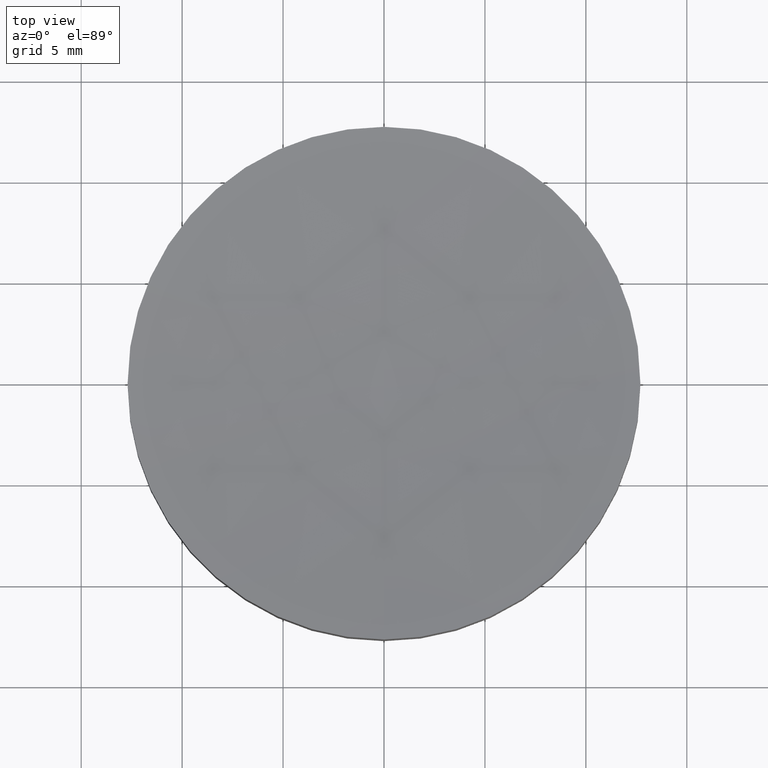
[diagram: clean part render]
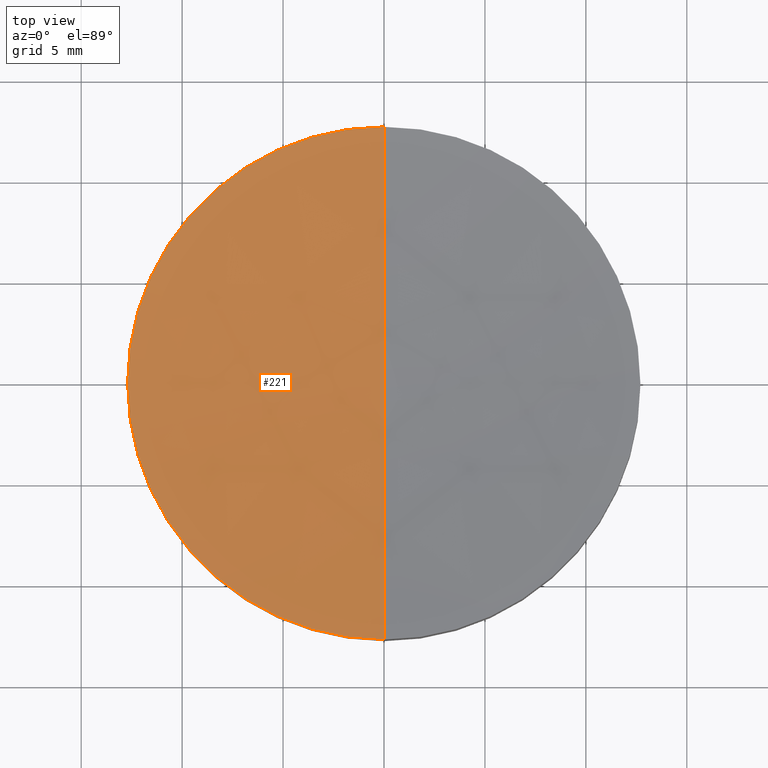
[diagram: same view with one face highlighted and labeled with its STEP entity id]
A machine part, top view. The second image highlights one B-rep face of the part: STEP entity #221.
In plain terms, the highlighted face is a freeform B-spline surface patch.
Its self-contained STEP definition (entity closure, byte-faithful):
#8 = CARTESIAN_POINT ( 'NONE',  ( -7.129765185504777100E-015, -12.85162862928874500, 3.994803794327109100 ) ) ;
#21 = CARTESIAN_POINT ( 'NONE',  ( -4.239458280148785900, 12.85162862928875600, 3.994803794327095300 ) ) ;
#23 = CARTESIAN_POINT ( 'NONE',  ( -12.69999999999999900, 3.997792089092478900E-015, 3.976089718365059400 ) ) ;
#24 = DIRECTION ( 'NONE',  ( 1.000000000000000000, 8.881784197001252300E-016, 0.0000000000000000000 ) ) ;
#32 = CARTESIAN_POINT ( 'NONE',  ( -12.80843556786030200, 4.305750462270676600, 3.721136836858725000 ) ) ;
#45 = CARTESIAN_POINT ( 'NONE',  ( -8.470927846836909600, 12.85162862928875600, 4.254941864040541900 ) ) ;
#50 = CARTESIAN_POINT ( 'NONE',  ( 1.421085471520200100E-014, 7.105427357601000300E-015, 107.5000000000000000 ) ) ;
#52 = CARTESIAN_POINT ( 'NONE',  ( -9.766176765780043300E-015, -4.305750462270667700, 2.933712597558344500 ) ) ;
#53 = CARTESIAN_POINT ( 'NONE',  ( -12.67846138054761300, -12.85162862928874900, 4.774237610048358800 ) ) ;
#55 = CARTESIAN_POINT ( 'NONE',  ( -4.282919401184633700, 4.305750462270679300, 2.933712597558331100 ) ) ;
#63 = CARTESIAN_POINT ( 'NONE',  ( -1.425310075416590300E-014, 12.69999999999996600, 3.976089718365062100 ) ) ;
#64 = CARTESIAN_POINT ( 'NONE',  ( -1.429083953050163700E-014, 12.85162862928875800, 3.994803794327095300 ) ) ;
#67 = DIRECTION ( 'NONE',  ( -2.786057141690520200E-016, 1.000000000000000000, 2.661129013962503900E-016 ) ) ;
#71 = CARTESIAN_POINT ( 'NONE',  ( -4.282919401184630100, -4.305750462270668600, 2.933712597558345800 ) ) ;
#72 = DIRECTION ( 'NONE',  ( 1.000000000000000000, 0.0000000000000000000, 0.0000000000000000000 ) ) ;
#94 = EDGE_CURVE ( 'NONE', #118, #201, #104, .T. ) ;
#95 = CARTESIAN_POINT ( 'NONE',  ( -4.239458280148777900, -12.85162862928874500, 3.994803794327109100 ) ) ;
#104 = CIRCLE ( 'NONE', #255, 104.2999999999999800 ) ;
#108 = DIRECTION ( 'NONE',  ( -0.0000000000000000000, -0.0000000000000000000, -1.000000000000000000 ) ) ;
#111 = CARTESIAN_POINT ( 'NONE',  ( -1.216539013092934000E-014, 4.305750462270680100, 2.933712597558331100 ) ) ;
#115 = CARTESIAN_POINT ( 'NONE',  ( -8.557768192019967300, -4.305750462270669500, 3.196517491990124200 ) ) ;
#118 = VERTEX_POINT ( 'NONE', #63 ) ;
#127 = ORIENTED_EDGE ( 'NONE', *, *, #132, .F. ) ;
#132 = EDGE_CURVE ( 'NONE', #234, #118, #137, .T. ) ;
#137 = CIRCLE ( 'NONE', #246, 12.69999999999999900 ) ;
#141 = CARTESIAN_POINT ( 'NONE',  ( -12.80843556786029700, -4.305750462270671300, 3.721136836858738800 ) ) ;
#152 = ORIENTED_EDGE ( 'NONE', *, *, #94, .F. ) ;
#154 = CIRCLE ( 'NONE', #251, 12.69999999999999900 ) ;
#155 = DIRECTION ( 'NONE',  ( -1.000000000000000000, -2.786057141690520200E-016, 2.407720383784880200E-016 ) ) ;
#175 = FACE_OUTER_BOUND ( 'NONE', #229, .T. ) ;
#195 =( BOUNDED_SURFACE ( )  B_SPLINE_SURFACE ( 3, 3, ( 
 ( #64, #21, #45, #206 ),
 ( #111, #55, #228, #32 ),
 ( #52, #71, #115, #141 ),
 ( #8, #95, #283, #53 ) ),
 .UNSPECIFIED., .F., .F., .F. ) 
 B_SPLINE_SURFACE_WITH_KNOTS ( ( 4, 4 ),
 ( 4, 4 ),
 ( 0.0000000000000000000, 1.000000000000000000 ),
 ( 0.0000000000000000000, 1.000000000000000000 ),
 .UNSPECIFIED. ) 
 GEOMETRIC_REPRESENTATION_ITEM ( )  RATIONAL_B_SPLINE_SURFACE ( (
 ( 1.000000000000000000, 0.9987437524745305100, 0.9987437524745305100, 1.000000000000000000),
 ( 0.9949197584255219400, 0.9936698929409592000, 0.9936698929409592000, 0.9949197584255219400),
 ( 0.9949197584255219400, 0.9936698929409592000, 0.9936698929409592000, 0.9949197584255219400),
 ( 1.000000000000000000, 0.9987437524745305100, 0.9987437524745305100, 1.000000000000000000) ) ) 
 REPRESENTATION_ITEM ( '' )  SURFACE ( )  );
#201 = VERTEX_POINT ( 'NONE', #295 ) ;
#206 = CARTESIAN_POINT ( 'NONE',  ( -12.67846138054762400, 12.85162862928875400, 4.774237610048345500 ) ) ;
#221 = ADVANCED_FACE ( 'NONE', ( #175 ), #195, .F. ) ;
#223 = CARTESIAN_POINT ( 'NONE',  ( 4.996003610813200500E-016, 2.442490654175340100E-015, 3.976089718365059400 ) ) ;
#227 = CARTESIAN_POINT ( 'NONE',  ( 4.996003610813200500E-016, 2.442490654175340100E-015, 3.976089718365059400 ) ) ;
#228 = CARTESIAN_POINT ( 'NONE',  ( -8.557768192019972600, 4.305750462270678400, 3.196517491990110500 ) ) ;
#229 = EDGE_LOOP ( 'NONE', ( #152, #127, #292 ) ) ;
#234 = VERTEX_POINT ( 'NONE', #23 ) ;
#246 = AXIS2_PLACEMENT_3D ( 'NONE', #223, #108, #24 ) ;
#251 = AXIS2_PLACEMENT_3D ( 'NONE', #227, #257, #72 ) ;
#255 = AXIS2_PLACEMENT_3D ( 'NONE', #50, #155, #67 ) ;
#257 = DIRECTION ( 'NONE',  ( -0.0000000000000000000, -0.0000000000000000000, -1.000000000000000000 ) ) ;
#258 = EDGE_CURVE ( 'NONE', #201, #234, #154, .T. ) ;
#283 = CARTESIAN_POINT ( 'NONE',  ( -8.470927846836898900, -12.85162862928874500, 4.254941864040555200 ) ) ;
#292 = ORIENTED_EDGE ( 'NONE', *, *, #258, .F. ) ;
#295 = CARTESIAN_POINT ( 'NONE',  ( -7.176515614272006900E-015, -12.69999999999995500, 3.976089718365062100 ) ) ;